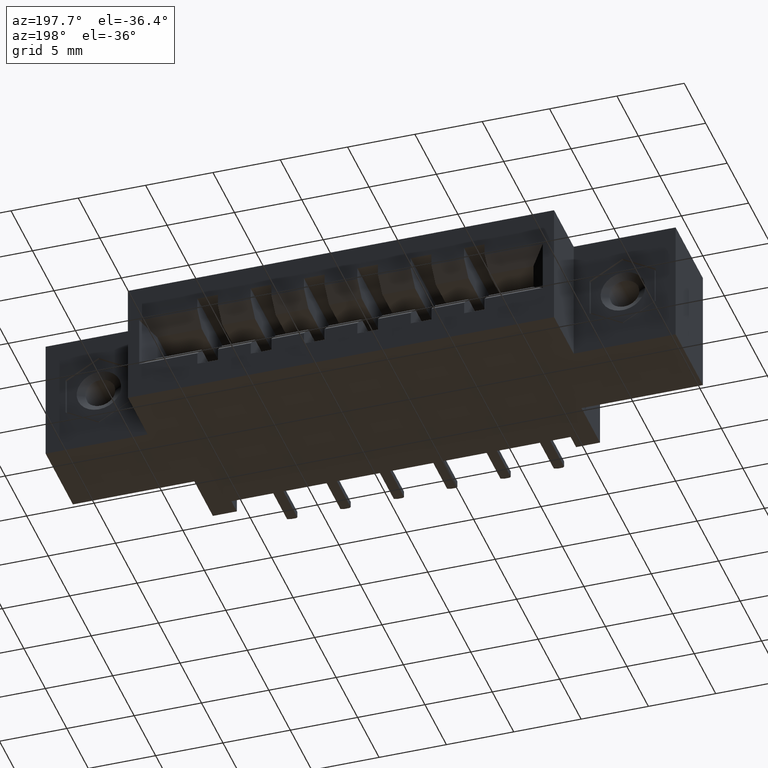
[diagram: clean part render]
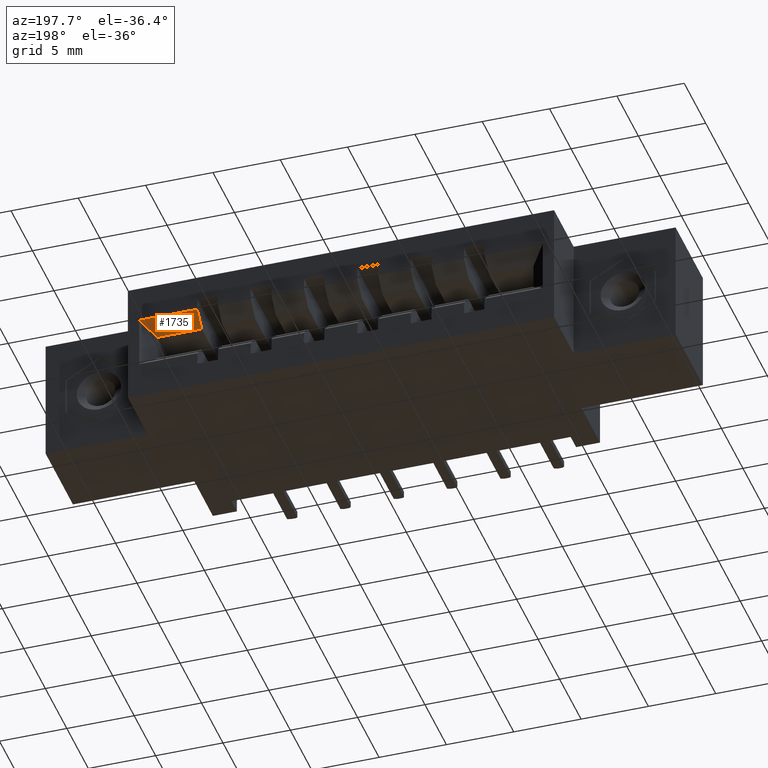
[diagram: same view with one face highlighted and labeled with its STEP entity id]
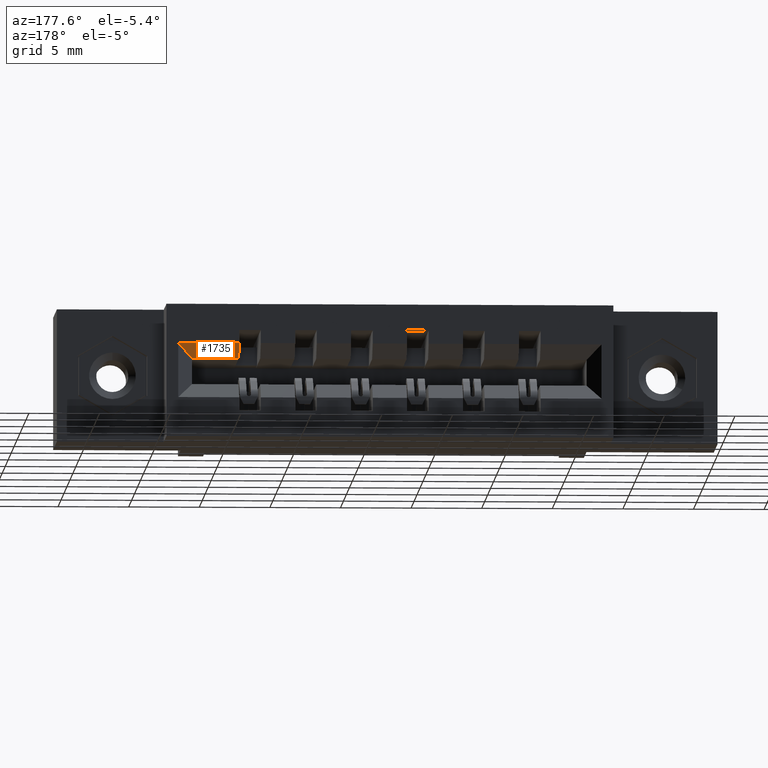
[diagram: same view with one face highlighted and labeled with its STEP entity id]
A machine part, auxiliary view. The second image highlights one B-rep face of the part: STEP entity #1735.
A second angle (auxiliary view) of the same face is appended — the face is thin or edge-on in the first view.
In plain terms, the highlighted planar face has unit normal (0, -0.7071, 0.7071).
Its self-contained STEP definition (entity closure, byte-faithful):
#33 = DIRECTION ( 'NONE',  ( 1.000000000000000000, 0.0000000000000000000, 0.0000000000000000000 ) ) ;
#588 = DIRECTION ( 'NONE',  ( -0.0000000000000000000, -0.7071067811865451300, -0.7071067811865499000 ) ) ;
#885 = EDGE_CURVE ( 'NONE', #3114, #6703, #3095, .T. ) ;
#1129 = EDGE_LOOP ( 'NONE', ( #1528, #1598, #7260, #10414 ) ) ;
#1528 = ORIENTED_EDGE ( 'NONE', *, *, #1548, .F. ) ;
#1548 = EDGE_CURVE ( 'NONE', #6703, #6838, #6502, .T. ) ;
#1598 = ORIENTED_EDGE ( 'NONE', *, *, #885, .F. ) ;
#1735 = ADVANCED_FACE ( 'NONE', ( #9687 ), #9692, .F. ) ;
#1852 = LINE ( 'NONE', #10202, #6425 ) ;
#2525 = CARTESIAN_POINT ( 'NONE',  ( 0.3710000000000000000, 0.5600000000000003900, -0.1490000000000000800 ) ) ;
#2588 = VECTOR ( 'NONE', #8006, 39.37007874015748100 ) ;
#2663 = DIRECTION ( 'NONE',  ( 0.0000000000000000000, -0.7071067811865451300, -0.7071067811865499000 ) ) ;
#3095 = LINE ( 'NONE', #9597, #2588 ) ;
#3114 = VERTEX_POINT ( 'NONE', #8494 ) ;
#3926 = CARTESIAN_POINT ( 'NONE',  ( 1.340999999999999700, 0.5600000000000003900, -0.1490000000000000800 ) ) ;
#4270 = VECTOR ( 'NONE', #588, 39.37007874015748100 ) ;
#4558 = DIRECTION ( 'NONE',  ( -0.5773502691896269500, -0.5773502691896230700, -0.5773502691896269500 ) ) ;
#4928 = EDGE_CURVE ( 'NONE', #3114, #5798, #1852, .T. ) ;
#5186 = CARTESIAN_POINT ( 'NONE',  ( 1.340999999999999700, 0.5999999999999999800, -0.1090000000000002200 ) ) ;
#5621 = CARTESIAN_POINT ( 'NONE',  ( 0.3710000000000000000, 0.5600000000000003900, -0.1490000000000000800 ) ) ;
#5798 = VERTEX_POINT ( 'NONE', #8981 ) ;
#6040 = CARTESIAN_POINT ( 'NONE',  ( 1.340999999999999700, 0.5600000000000003900, -0.1490000000000000500 ) ) ;
#6425 = VECTOR ( 'NONE', #4558, 39.37007874015748900 ) ;
#6502 = LINE ( 'NONE', #3926, #4270 ) ;
#6703 = VERTEX_POINT ( 'NONE', #5186 ) ;
#6718 = AXIS2_PLACEMENT_3D ( 'NONE', #5621, #7553, #2663 ) ;
#6838 = VERTEX_POINT ( 'NONE', #6040 ) ;
#6869 = LINE ( 'NONE', #2525, #10322 ) ;
#7260 = ORIENTED_EDGE ( 'NONE', *, *, #4928, .T. ) ;
#7553 = DIRECTION ( 'NONE',  ( 0.0000000000000000000, -0.7071067811865499000, 0.7071067811865451300 ) ) ;
#8006 = DIRECTION ( 'NONE',  ( -1.000000000000000000, 0.0000000000000000000, 0.0000000000000000000 ) ) ;
#8494 = CARTESIAN_POINT ( 'NONE',  ( 1.511000000000000600, 0.5999999999999999800, -0.1090000000000002200 ) ) ;
#8981 = CARTESIAN_POINT ( 'NONE',  ( 1.471000000000000800, 0.5600000000000003900, -0.1490000000000000800 ) ) ;
#9372 = EDGE_CURVE ( 'NONE', #6838, #5798, #6869, .T. ) ;
#9597 = CARTESIAN_POINT ( 'NONE',  ( 0.0000000000000000000, 0.5999999999999999800, -0.1090000000000002200 ) ) ;
#9687 = FACE_OUTER_BOUND ( 'NONE', #1129, .T. ) ;
#9692 = PLANE ( 'NONE',  #6718 ) ;
#10202 = CARTESIAN_POINT ( 'NONE',  ( 1.104333333333332300, 0.1933333333333342500, -0.5156666666666687200 ) ) ;
#10322 = VECTOR ( 'NONE', #33, 39.37007874015748100 ) ;
#10414 = ORIENTED_EDGE ( 'NONE', *, *, #9372, .F. ) ;